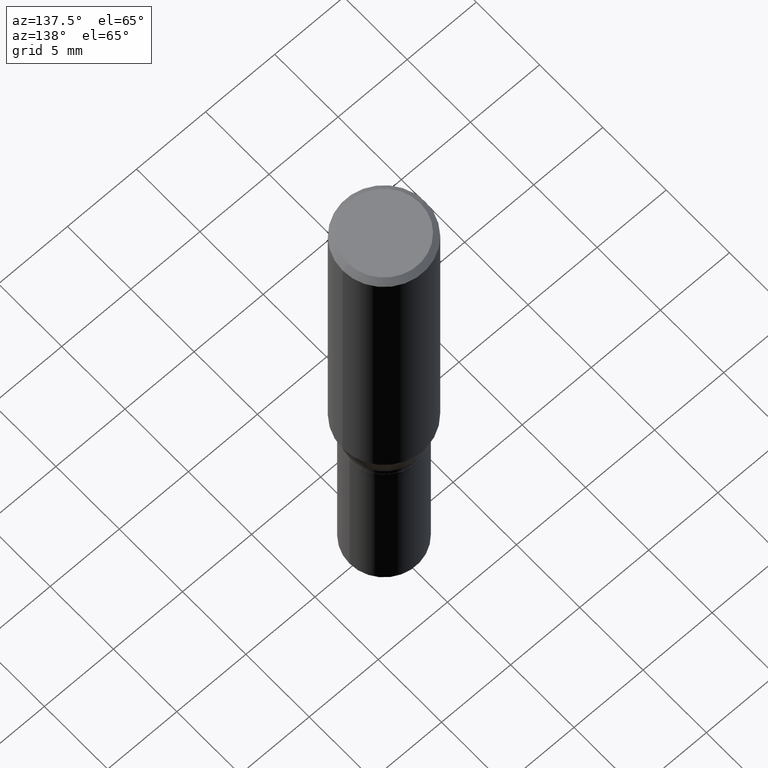
[diagram: clean part render]
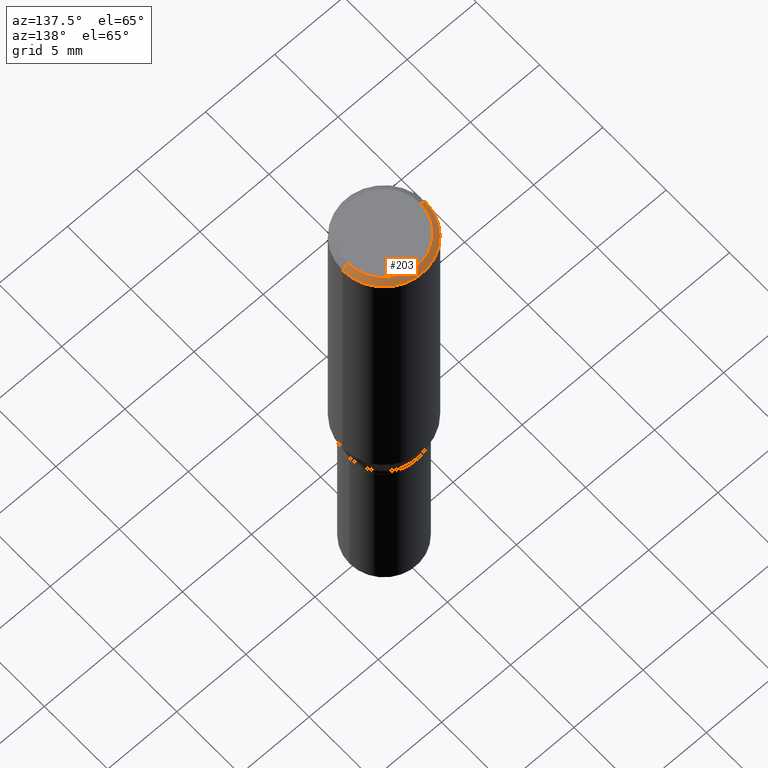
[diagram: same view with one face highlighted and labeled with its STEP entity id]
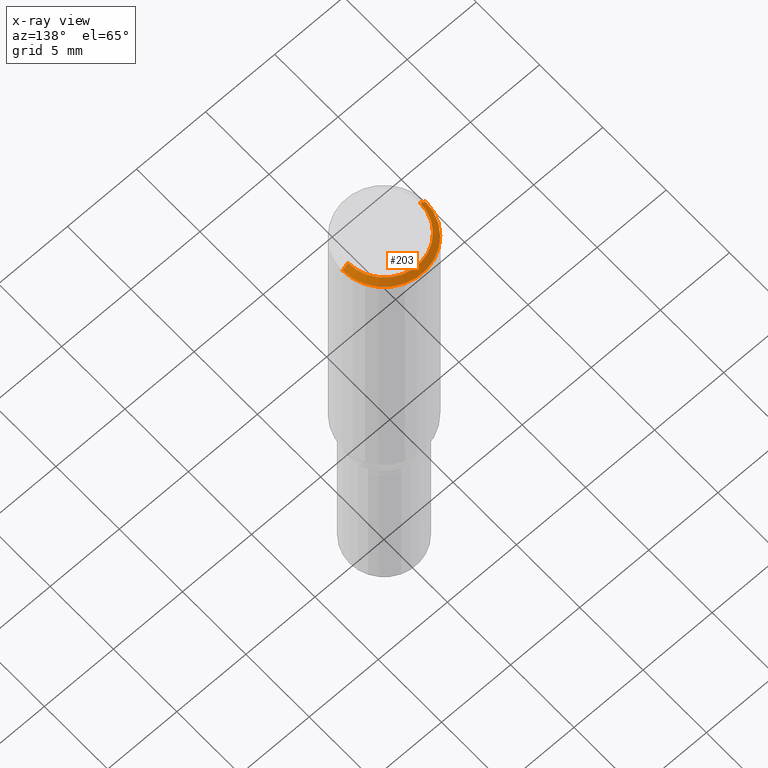
[diagram: x-ray of the same camera — body ghosted, the highlighted face saturated]
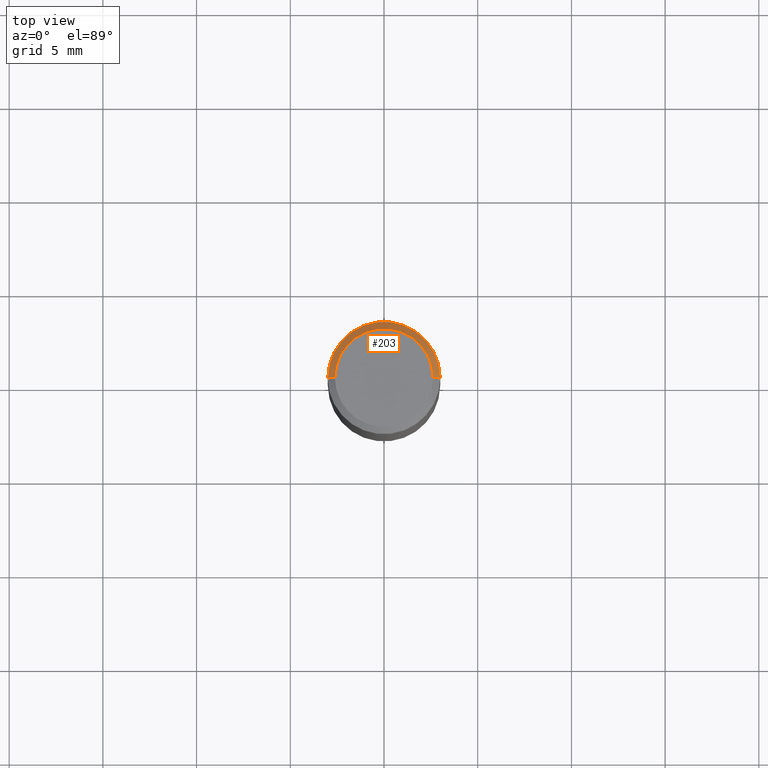
[diagram: same view with one face highlighted and labeled with its STEP entity id]
A machine part, auxiliary view. The second image highlights one B-rep face of the part: STEP entity #203.
The next image is the same camera in x-ray: the body ghosted, the highlighted face saturated — about 0% of this face is hidden behind the body in this view.
A second angle (top view) of the same face is appended — the face is thin or edge-on in the first view.
In plain terms, the highlighted conical surface has half-angle 45 deg.
Its self-contained STEP definition (entity closure, byte-faithful):
#8 = DIRECTION ( 'NONE',  ( -1.000000000000000000, 6.982962677686266711E-15, 0.000000000000000000 ) ) ;
#9 = AXIS2_PLACEMENT_3D ( 'NONE', #224, #405, #8 ) ;
#12 = DIRECTION ( 'NONE',  ( 0.7071067811865500152, -7.319954787623263934E-15, -0.7071067811865450192 ) ) ;
#13 = CARTESIAN_POINT ( 'NONE',  ( -0.1030999999999999833, 7.461295621107773480E-16, -6.716606437695998257E-17 ) ) ;
#31 = VERTEX_POINT ( 'NONE', #186 ) ;
#82 = FACE_OUTER_BOUND ( 'NONE', #254, .T. ) ;
#84 = CARTESIAN_POINT ( 'NONE',  ( 0.1180999999999999966, -8.625970336194650129E-16, -0.01499999999999996995 ) ) ;
#101 = ORIENTED_EDGE ( 'NONE', *, *, #294, .F. ) ;
#133 = CARTESIAN_POINT ( 'NONE',  ( 3.668203209277697643E-31, -5.237222008264707922E-17, -0.01499999999999996995 ) ) ;
#138 = ORIENTED_EDGE ( 'NONE', *, *, #211, .T. ) ;
#142 = CIRCLE ( 'NONE', #359, 0.1030999999999999833 ) ;
#155 = CONICAL_SURFACE ( 'NONE', #9, 0.1180999999999999966, 0.7853981633974518317 ) ;
#166 = DIRECTION ( 'NONE',  ( -2.445468806185136597E-29, 3.491481338843145583E-15, 1.000000000000000000 ) ) ;
#169 = DIRECTION ( 'NONE',  ( -0.7071067811865500152, 2.468850131082282699E-15, -0.7071067811865450192 ) ) ;
#180 = CIRCLE ( 'NONE', #197, 0.1180999999999999966 ) ;
#184 = ORIENTED_EDGE ( 'NONE', *, *, #360, .T. ) ;
#186 = CARTESIAN_POINT ( 'NONE',  ( -0.1180999999999999966, -7.576172704597157638E-16, -0.01499999999999996995 ) ) ;
#197 = AXIS2_PLACEMENT_3D ( 'NONE', #133, #267, #417 ) ;
#200 = VERTEX_POINT ( 'NONE', #338 ) ;
#203 = ADVANCED_FACE ( 'NONE', ( #82 ), #155, .T. ) ;
#211 = EDGE_CURVE ( 'NONE', #424, #200, #336, .T. ) ;
#221 = VERTEX_POINT ( 'NONE', #13 ) ;
#224 = CARTESIAN_POINT ( 'NONE',  ( 3.668203209277697643E-31, -5.237222008264707922E-17, -0.01499999999999996995 ) ) ;
#249 = CARTESIAN_POINT ( 'NONE',  ( 0.1030999999999999833, -7.849571885948550734E-16, -6.716606437694960412E-17 ) ) ;
#254 = EDGE_LOOP ( 'NONE', ( #101, #138, #184, #374 ) ) ;
#267 = DIRECTION ( 'NONE',  ( -2.445468806185136597E-29, 3.491481338843145583E-15, 1.000000000000000000 ) ) ;
#277 = CARTESIAN_POINT ( 'NONE',  ( 1.642525152680658333E-45, -2.345090603756752382E-31, -6.716606437695485497E-17 ) ) ;
#290 = VECTOR ( 'NONE', #169, 39.37007874015748143 ) ;
#294 = EDGE_CURVE ( 'NONE', #424, #221, #142, .T. ) ;
#315 = LINE ( 'NONE', #383, #290 ) ;
#336 = LINE ( 'NONE', #84, #407 ) ;
#338 = CARTESIAN_POINT ( 'NONE',  ( 0.1180999999999999966, -8.770601123173952432E-16, -0.01499999999999996995 ) ) ;
#340 = EDGE_CURVE ( 'NONE', #221, #31, #315, .T. ) ;
#359 = AXIS2_PLACEMENT_3D ( 'NONE', #277, #166, #419 ) ;
#360 = EDGE_CURVE ( 'NONE', #200, #31, #180, .T. ) ;
#374 = ORIENTED_EDGE ( 'NONE', *, *, #340, .F. ) ;
#383 = CARTESIAN_POINT ( 'NONE',  ( -0.1180999999999999966, 7.723156721521009862E-16, -0.01499999999999996995 ) ) ;
#405 = DIRECTION ( 'NONE',  ( 2.445468806185136597E-29, -3.491481338843145583E-15, -1.000000000000000000 ) ) ;
#407 = VECTOR ( 'NONE', #12, 39.37007874015748143 ) ;
#417 = DIRECTION ( 'NONE',  ( 1.000000000000000000, -6.982962677686266711E-15, 0.000000000000000000 ) ) ;
#419 = DIRECTION ( 'NONE',  ( 1.000000000000000000, -6.982962677686268288E-15, 4.875976817586845596E-29 ) ) ;
#424 = VERTEX_POINT ( 'NONE', #249 ) ;